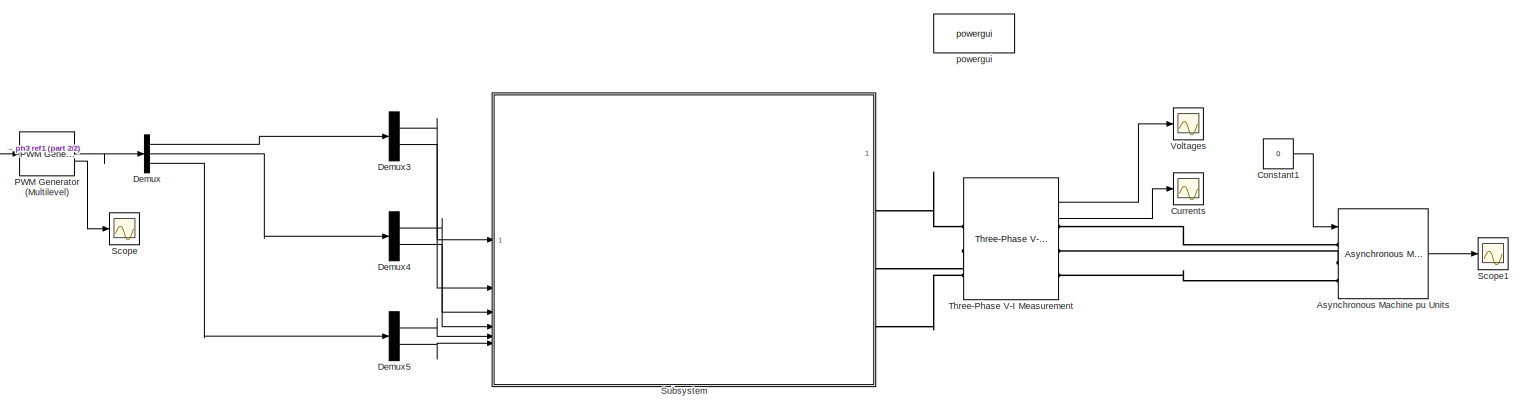
[diagram: root canvas - part 1/2, most of the canvas]
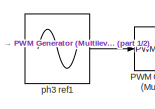
[diagram: root canvas - part 2/2, middle left region]
MODEL slx_dae77449472d
KIND model
CONFIG AbsTol = auto
CONFIG EnableMultiTasking = off
CONFIG FixedStep = auto
CONFIG MaxStep = auto
CONFIG MinStep = auto
CONFIG RelTol = 1e-3
CONFIG SampleTimeConstraint = Unconstrained
CONFIG SolverName = VariableStepAuto
CONFIG StartTime = 0.0
CONFIG StopTime = 0.1
WORKSPACE source: mxarray member
WORKSPACE Deadtime = 1e-07
WORKSPACE Fsw = 6000
WORKSPACE Output_Freq = 60
BLOCK [Reference] Asynchronous Machine pu Units  REF=spsAsynchronousMachinepuUnitsLib/Asynchronous Machine
pu Units
  LibrarySourceBlock = sps_lib/Electrical Machines/Asynchronous Machine\npu Units
  SourceBlock = spsAsynchronousMachinepuUnitsLib/Asynchronous Machine\npu Units
  SourceType = Asynchronous Machine
BLOCK [Constant] Constant1
  Value = 0
BLOCK [Scope] Currents
  Floating = off
  NumInputPorts = 1
  ScopeSpecificationString = Simulink.scopes.TimeScopeBlockCfg('CurrentConfiguration', extmgr.ConfigurationSet(extmgr.Configuration('Core','General UI',true),extmgr.Configuration('Core','Source UI',true),extmgr.Configuration('Sources','WiredSimulink',true,'DataLoggingVariableName','ScopeData3'),extmgr.Configuration('Visuals','Time Domain',true,'SerializedDisplays',{struct('MinYLimReal','-0.35155','MaxYLimReal','0.35133','YLab...<+1638ch>
BLOCK [Demux] Demux
  Outputs = 3
BLOCK [Demux] Demux3
  Outputs = 2
BLOCK [Demux] Demux4
  Outputs = 2
BLOCK [Demux] Demux5
  Outputs = 2
BLOCK [Reference] PWM Generator (Multilevel)  REF=spsPWMGeneratorMultilevelLib/PWM Generator
(Multilevel)
  LibrarySourceBlock = sps_lib/Power Electronics/Power Electronics Control/PWM Generator\n(Multilevel)
  SourceBlock = spsPWMGeneratorMultilevelLib/PWM Generator\n(Multilevel)
  SourceType = PWM Generator (Multilevel)
BLOCK [Scope] Scope
  Floating = off
  NumInputPorts = 1
  ScopeSpecificationString = Simulink.scopes.TimeScopeBlockCfg('CurrentConfiguration', extmgr.ConfigurationSet(extmgr.Configuration('Core','General UI',true),extmgr.Configuration('Core','Source UI',true),extmgr.Configuration('Sources','WiredSimulink',true),extmgr.Configuration('Visuals','Time Domain',true,'SerializedDisplays',{struct('MinYLimReal','-1.05061','MaxYLimReal','1.10836','YLabelReal','','MinYLimMag','0.00000','MaxY...<+1487ch>
BLOCK [Scope] Scope1
  Floating = off
  NumInputPorts = 1
  ScopeSpecificationString = Simulink.scopes.TimeScopeBlockCfg('CurrentConfiguration', extmgr.ConfigurationSet(extmgr.Configuration('Core','General UI',true),extmgr.Configuration('Core','Source UI',true),extmgr.Configuration('Sources','WiredSimulink',true,'DataLoggingVariableName','ScopeData1'),extmgr.Configuration('Visuals','Time Domain',true,'SerializedDisplays',{struct('MinYLimReal','-0.36894','MaxYLimReal','1.54544','YLab...<+2205ch>
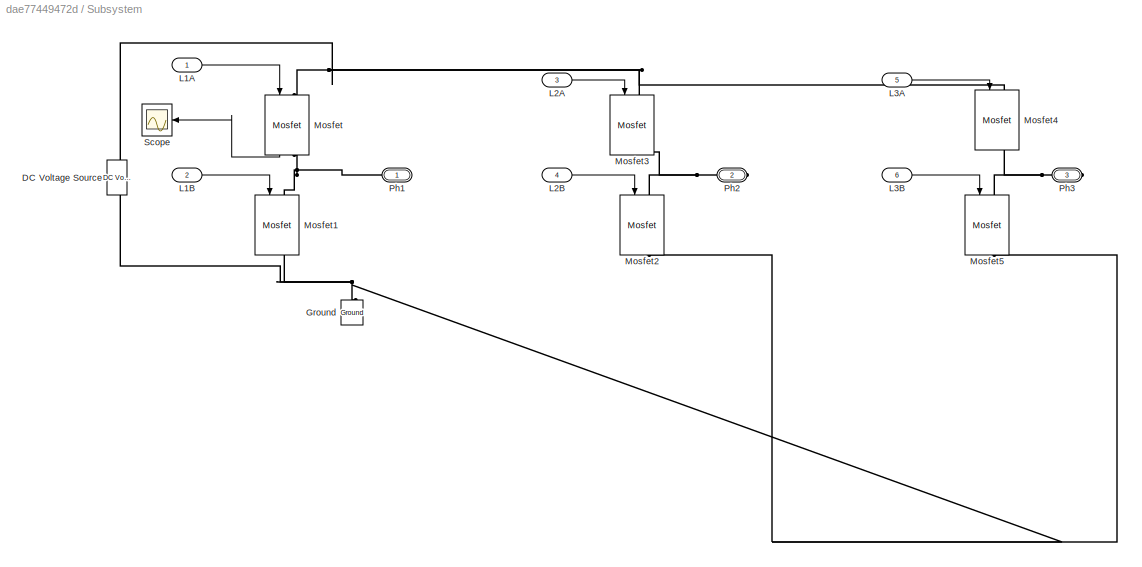
BLOCK [SubSystem] Subsystem
BLOCK [Reference] Subsystem/DC Voltage Source  REF=spsDCVoltageSourceLib/DC Voltage Source
  LibrarySourceBlock = sps_lib/Sources/DC Voltage Source
  SourceBlock = spsDCVoltageSourceLib/DC Voltage Source
  SourceType = DC Voltage Source
BLOCK [Reference] Subsystem/Ground  REF=spsGroundLib/Ground
  LibrarySourceBlock = sps_lib/Utilities/Ground
  NameLocation = right
  SourceBlock = spsGroundLib/Ground
  SourceType = Ground
BLOCK [Inport] Subsystem/L1A
BLOCK [Inport] Subsystem/L1B
  Port = 2
BLOCK [Inport] Subsystem/L2A
  Port = 3
BLOCK [Inport] Subsystem/L2B
  Port = 4
BLOCK [Inport] Subsystem/L3A
  Port = 5
BLOCK [Inport] Subsystem/L3B
  Port = 6
BLOCK [Reference] Subsystem/Mosfet  REF=spsMosfetLib/Mosfet
  LibrarySourceBlock = sps_lib/Power Electronics/Mosfet
  NameLocation = left
  SourceBlock = spsMosfetLib/Mosfet
  SourceType = Mosfet
BLOCK [Reference] Subsystem/Mosfet1  REF=spsMosfetLib/Mosfet
  LibrarySourceBlock = sps_lib/Power Electronics/Mosfet
  NameLocation = left
  SourceBlock = spsMosfetLib/Mosfet
  SourceType = Mosfet
BLOCK [Reference] Subsystem/Mosfet2  REF=spsMosfetLib/Mosfet
  LibrarySourceBlock = sps_lib/Power Electronics/Mosfet
  NameLocation = left
  SourceBlock = spsMosfetLib/Mosfet
  SourceType = Mosfet
BLOCK [Reference] Subsystem/Mosfet3  REF=spsMosfetLib/Mosfet
  LibrarySourceBlock = sps_lib/Power Electronics/Mosfet
  NameLocation = left
  SourceBlock = spsMosfetLib/Mosfet
  SourceType = Mosfet
BLOCK [Reference] Subsystem/Mosfet4  REF=spsMosfetLib/Mosfet
  LibrarySourceBlock = sps_lib/Power Electronics/Mosfet
  NameLocation = left
  SourceBlock = spsMosfetLib/Mosfet
  SourceType = Mosfet
BLOCK [Reference] Subsystem/Mosfet5  REF=spsMosfetLib/Mosfet
  LibrarySourceBlock = sps_lib/Power Electronics/Mosfet
  NameLocation = left
  SourceBlock = spsMosfetLib/Mosfet
  SourceType = Mosfet
BLOCK [PMIOPort] Subsystem/Ph1
  NameLocation = top
  Side = Right
BLOCK [PMIOPort] Subsystem/Ph2
  NameLocation = top
  Port = 2
  Side = Right
BLOCK [PMIOPort] Subsystem/Ph3
  NameLocation = top
  Port = 3
  Side = Right
BLOCK [Scope] Subsystem/Scope
  Floating = off
  NameLocation = top
  NumInputPorts = 1
  ScopeSpecificationString = Simulink.scopes.TimeScopeBlockCfg('CurrentConfiguration', extmgr.ConfigurationSet(extmgr.Configuration('Core','General UI',true),extmgr.Configuration('Core','Source UI',true),extmgr.Configuration('Sources','WiredSimulink',true,'DataLoggingVariableName','ScopeData4'),extmgr.Configuration('Visuals','Time Domain',true,'SerializedDisplays',{struct('MinYLimReal','-14.41489','MaxYLimReal','926.93549','Y...<+1485ch>
BLOCK [Reference] Three-Phase V-I Measurement  REF=spsThreePhaseVIMeasurementLib/Three-Phase
V-I Measurement
  LibrarySourceBlock = sps_lib/Sensors and Measurements/Three-Phase\nV-I Measurement
  SourceBlock = spsThreePhaseVIMeasurementLib/Three-Phase\nV-I Measurement
  SourceType = Three-Phase VI Measurement
BLOCK [Scope] Voltages
  Floating = off
  NumInputPorts = 1
  ScopeSpecificationString = Simulink.scopes.TimeScopeBlockCfg('CurrentConfiguration', extmgr.ConfigurationSet(extmgr.Configuration('Core','General UI',true),extmgr.Configuration('Core','Source UI',true),extmgr.Configuration('Sources','WiredSimulink',true,'DataLoggingVariableName','ScopeData2'),extmgr.Configuration('Visuals','Time Domain',true,'SerializedDisplays',{struct('MinYLimReal','-0.83053','MaxYLimReal','100.43258','YL...<+1552ch>
BLOCK [Sin] ph3 ref1
  Amplitude = 1/2
  Bias = 1/2
  Frequency = Output_Freq
  SampleTime = 0
BLOCK [Reference] powergui  REF=sps_lib/powergui
  Priority = 1
  SourceBlock = sps_lib/powergui
  SourceType = PSB option menu block
LINE Asynchronous Machine pu Units:1 -> Scope1:1
LINE Constant1:1 -> Asynchronous Machine pu Units:1
LINE Demux3:1 -> Subsystem:1
LINE Demux3:2 -> Subsystem:2
LINE Demux4:1 -> Subsystem:3
LINE Demux4:2 -> Subsystem:4
LINE Demux5:1 -> Subsystem:5
LINE Demux5:2 -> Subsystem:6
LINE Demux:1 -> Demux3:1
LINE Demux:2 -> Demux4:1
LINE Demux:3 -> Demux5:1
LINE PWM Generator (Multilevel):1 -> Demux:1
LINE PWM Generator (Multilevel):2 -> Scope:1
LINE Subsystem/L1A:1 -> Subsystem/Mosfet:1
LINE Subsystem/L1B:1 -> Subsystem/Mosfet1:1
LINE Subsystem/L2A:1 -> Subsystem/Mosfet3:1
LINE Subsystem/L2B:1 -> Subsystem/Mosfet2:1
LINE Subsystem/L3A:1 -> Subsystem/Mosfet4:1
LINE Subsystem/L3B:1 -> Subsystem/Mosfet5:1
LINE Subsystem/Mosfet:1 -> Subsystem/Scope:1
LINE Three-Phase V-I Measurement:1 -> Voltages:1
LINE Three-Phase V-I Measurement:2 -> Currents:1
LINE ph3 ref1:1 -> PWM Generator (Multilevel):1
PLINE Asynchronous Machine pu Units:LConn1 -- Three-Phase V-I Measurement:RConn1
PLINE Asynchronous Machine pu Units:LConn2 -- Three-Phase V-I Measurement:RConn2
PLINE Asynchronous Machine pu Units:LConn3 -- Three-Phase V-I Measurement:RConn3
PNET net1: Subsystem/DC Voltage Source:LConn1 -- Subsystem/Ground:LConn1 -- Subsystem/Mosfet1:RConn1 -- Subsystem/Mosfet2:RConn1 -- Subsystem/Mosfet5:RConn1
PNET net2: Subsystem/DC Voltage Source:RConn1 -- Subsystem/Mosfet3:LConn1 -- Subsystem/Mosfet4:LConn1 -- Subsystem/Mosfet:LConn1
PNET net3: Subsystem/Mosfet1:LConn1 -- Subsystem/Mosfet:RConn1 -- Subsystem/Ph1:RConn1
PNET net4: Subsystem/Mosfet2:LConn1 -- Subsystem/Mosfet3:RConn1 -- Subsystem/Ph2:RConn1
PNET net5: Subsystem/Mosfet4:RConn1 -- Subsystem/Mosfet5:LConn1 -- Subsystem/Ph3:RConn1
PLINE Subsystem:RConn1 -- Three-Phase V-I Measurement:LConn1
PLINE Subsystem:RConn2 -- Three-Phase V-I Measurement:LConn2
PLINE Subsystem:RConn3 -- Three-Phase V-I Measurement:LConn3
note: PNET lines group multi-terminal physical nets as a canonical sorted terminal list (undirected conserving connections); 2-terminal nets keep the pairwise PLINE form
